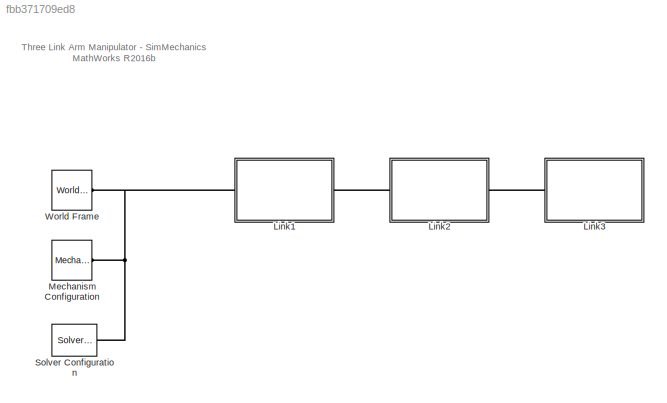
MODEL slx_fbb371709ed8
KIND model
CONFIG AbsTol = auto
CONFIG EnableMultiTasking = on
CONFIG FixedStep = auto
CONFIG MaxStep = 0.1
CONFIG MinStep = auto
CONFIG PreLoadFcn = b1 = 0.015;\nm1 = 1;\nrho1 = 1;\nth1_0 = 75;\nb2 = 0.015;\nm2 = 1.2;\nrho2 = 1.2;\nth2_0 = 60;\nb3 = 0.015;\nm3 = 0.5;\nrho3 = 0.5;\nth3_0 = 90;
CONFIG RelTol = 1e-3
CONFIG SampleTimeConstraint = Unconstrained
CONFIG Solver = ode23t
CONFIG SolverName = ode23t
CONFIG StartTime = 0.0
CONFIG StopTime = 20
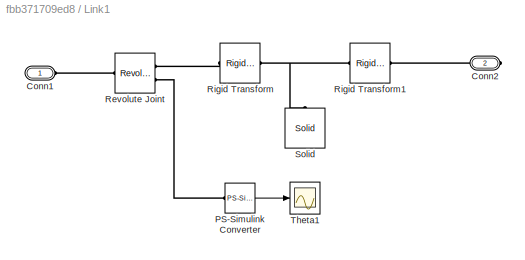
BLOCK [SubSystem] Link1
  Ports = [0, 0, 0, 0, 0, 1, 1]
  RequestExecContextInheritance = off
  Variant = off
BLOCK [PMIOPort] Link1/Conn1
  Port = 1
  Side = Left
BLOCK [PMIOPort] Link1/Conn2
  Port = 2
  Side = Right
BLOCK [Reference] Link1/PS-Simulink Converter  REF=nesl_utility/PS-Simulink
Converter
  Ports = [0, 1, 0, 0, 0, 1]
  SourceBlock = nesl_utility/PS-Simulink\nConverter
  SourceType = PS-Simulink\nConverter
BLOCK [Reference] Link1/Revolute Joint  REF=sm_lib/Joints/Revolute Joint
  Ports = [0, 0, 0, 0, 0, 1, 2]
  SourceBlock = sm_lib/Joints/Revolute Joint
  SourceType = Revolute Joint
BLOCK [Reference] Link1/Rigid Transform  REF=sm_lib/Frames and
Transforms/Rigid
Transform
  Ports = [0, 0, 0, 0, 0, 1, 1]
  SourceBlock = sm_lib/Frames and\nTransforms/Rigid\nTransform
  SourceType = Rigid\nTransform
BLOCK [Reference] Link1/Rigid Transform1  REF=sm_lib/Frames and
Transforms/Rigid
Transform
  Ports = [0, 0, 0, 0, 0, 1, 1]
  SourceBlock = sm_lib/Frames and\nTransforms/Rigid\nTransform
  SourceType = Rigid\nTransform
BLOCK [Reference] Link1/Solid  REF=sm_lib/Body Elements/Solid
  Ports = [0, 0, 0, 0, 0, 0, 1]
  SourceBlock = sm_lib/Body Elements/Solid
  SourceType = Solid
BLOCK [Scope] Link1/Theta1
  NumInputPorts = 1
  Ports = [1]
  ScopeSpecificationString = C++SS(StrPVP('Location','[180, 509, 518, 773]'),StrPVP('Open','off'),MxPVP('AxesTitles',24,'struct(''axes1'',''%<SignalLabel>'')'),MxPVP('ScopeGraphics',28,'struct(''FigureColor'',''[0.313725490196078 0.313725490196078 0.313725490196078]'',''AxesColor'',''[1 1 1]'',''AxesTickColor'',''[0.8 0.8 0.8]'',''LineColors'',''[0.870588235294118 0.490196078431373 0;0 0.447058823529412 0.741176470588235;0.46...<+418ch>
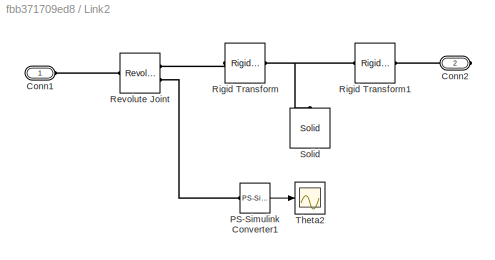
BLOCK [SubSystem] Link2
  Ports = [0, 0, 0, 0, 0, 1, 1]
  RequestExecContextInheritance = off
  Variant = off
BLOCK [PMIOPort] Link2/Conn1
  Port = 1
  Side = Left
BLOCK [PMIOPort] Link2/Conn2
  Port = 2
  Side = Right
BLOCK [Reference] Link2/PS-Simulink Converter1  REF=nesl_utility/PS-Simulink
Converter
  Ports = [0, 1, 0, 0, 0, 1]
  SourceBlock = nesl_utility/PS-Simulink\nConverter
  SourceType = PS-Simulink\nConverter
BLOCK [Reference] Link2/Revolute Joint  REF=sm_lib/Joints/Revolute Joint
  Ports = [0, 0, 0, 0, 0, 1, 2]
  SourceBlock = sm_lib/Joints/Revolute Joint
  SourceType = Revolute Joint
BLOCK [Reference] Link2/Rigid Transform  REF=sm_lib/Frames and
Transforms/Rigid
Transform
  Ports = [0, 0, 0, 0, 0, 1, 1]
  SourceBlock = sm_lib/Frames and\nTransforms/Rigid\nTransform
  SourceType = Rigid\nTransform
BLOCK [Reference] Link2/Rigid Transform1  REF=sm_lib/Frames and
Transforms/Rigid
Transform
  Ports = [0, 0, 0, 0, 0, 1, 1]
  SourceBlock = sm_lib/Frames and\nTransforms/Rigid\nTransform
  SourceType = Rigid\nTransform
BLOCK [Reference] Link2/Solid  REF=sm_lib/Body Elements/Solid
  Ports = [0, 0, 0, 0, 0, 0, 1]
  SourceBlock = sm_lib/Body Elements/Solid
  SourceType = Solid
BLOCK [Scope] Link2/Theta2
  NumInputPorts = 1
  Ports = [1]
  ScopeSpecificationString = C++SS(StrPVP('Location','[536, 509, 860, 770]'),StrPVP('Open','off'),MxPVP('AxesTitles',24,'struct(''axes1'',''%<SignalLabel>'')'),MxPVP('ScopeGraphics',28,'struct(''FigureColor'',''[0.313725490196078 0.313725490196078 0.313725490196078]'',''AxesColor'',''[1 1 1]'',''AxesTickColor'',''[0.8 0.8 0.8]'',''LineColors'',''[0.870588235294118 0.490196078431373 0;0 0.447058823529412 0.741176470588235;0.46...<+450ch>
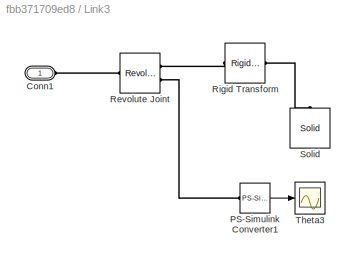
BLOCK [SubSystem] Link3
  Ports = [0, 0, 0, 0, 0, 1]
  RequestExecContextInheritance = off
  Variant = off
BLOCK [PMIOPort] Link3/Conn1
  Port = 1
  Side = Left
BLOCK [Reference] Link3/PS-Simulink Converter1  REF=nesl_utility/PS-Simulink
Converter
  Ports = [0, 1, 0, 0, 0, 1]
  SourceBlock = nesl_utility/PS-Simulink\nConverter
  SourceType = PS-Simulink\nConverter
BLOCK [Reference] Link3/Revolute Joint  REF=sm_lib/Joints/Revolute Joint
  Ports = [0, 0, 0, 0, 0, 1, 2]
  SourceBlock = sm_lib/Joints/Revolute Joint
  SourceType = Revolute Joint
BLOCK [Reference] Link3/Rigid Transform  REF=sm_lib/Frames and
Transforms/Rigid
Transform
  Ports = [0, 0, 0, 0, 0, 1, 1]
  SourceBlock = sm_lib/Frames and\nTransforms/Rigid\nTransform
  SourceType = Rigid\nTransform
BLOCK [Reference] Link3/Solid  REF=sm_lib/Body Elements/Solid
  Ports = [0, 0, 0, 0, 0, 0, 1]
  SourceBlock = sm_lib/Body Elements/Solid
  SourceType = Solid
BLOCK [Scope] Link3/Theta3
  NumInputPorts = 1
  Ports = [1]
  ScopeSpecificationString = C++SS(StrPVP('Location','[536, 509, 860, 770]'),StrPVP('Open','off'),MxPVP('AxesTitles',24,'struct(''axes1'',''%<SignalLabel>'')'),MxPVP('ScopeGraphics',28,'struct(''FigureColor'',''[0.313725490196078 0.313725490196078 0.313725490196078]'',''AxesColor'',''[1 1 1]'',''AxesTickColor'',''[0.8 0.8 0.8]'',''LineColors'',''[0.870588235294118 0.490196078431373 0;0 0.447058823529412 0.741176470588235;0.46...<+450ch>
BLOCK [Reference] Mechanism Configuration  REF=sm_lib/Utilities/Mechanism
Configuration
  Ports = [0, 0, 0, 0, 0, 0, 1]
  SourceBlock = sm_lib/Utilities/Mechanism\nConfiguration
  SourceType = Mechanism\nConfiguration
BLOCK [Reference] Solver Configuration  REF=nesl_utility/Solver
Configuration
  Ports = [0, 0, 0, 0, 0, 0, 1]
  SourceBlock = nesl_utility/Solver\nConfiguration
  SourceType = Solver\nConfiguration
BLOCK [Reference] World Frame  REF=sm_lib/Frames and
Transforms/World Frame
  Ports = [0, 0, 0, 0, 0, 0, 1]
  SourceBlock = sm_lib/Frames and\nTransforms/World Frame
  SourceType = World Frame
ANNOTATION (root): Three Link Arm Manipulator - SimMechanics MathWorks R2016b
LINE Link1/PS-Simulink Converter:1 -> Link1/Theta1:1
LINE Link2/PS-Simulink Converter1:1 -> Link2/Theta2:1
LINE Link3/PS-Simulink Converter1:1 -> Link3/Theta3:1
PLINE Link1/Conn1:RConn1 -- Link1/Revolute Joint:LConn1
PLINE Link1/Conn2:RConn1 -- Link1/Rigid Transform1:RConn1
PLINE Link1/PS-Simulink Converter:LConn1 -- Link1/Revolute Joint:RConn2
PLINE Link1/Revolute Joint:RConn1 -- Link1/Rigid Transform:LConn1
PNET net1: Link1/Rigid Transform1:LConn1 -- Link1/Rigid Transform:RConn1 -- Link1/Solid:RConn1
PNET net2: Link1:LConn1 -- Mechanism Configuration:RConn1 -- Solver Configuration:RConn1 -- World Frame:RConn1
PLINE Link1:RConn1 -- Link2:LConn1
PLINE Link2/Conn1:RConn1 -- Link2/Revolute Joint:LConn1
PLINE Link2/Conn2:RConn1 -- Link2/Rigid Transform1:RConn1
PLINE Link2/PS-Simulink Converter1:LConn1 -- Link2/Revolute Joint:RConn2
PLINE Link2/Revolute Joint:RConn1 -- Link2/Rigid Transform:LConn1
PNET net3: Link2/Rigid Transform1:LConn1 -- Link2/Rigid Transform:RConn1 -- Link2/Solid:RConn1
PLINE Link2:RConn1 -- Link3:LConn1
PLINE Link3/Conn1:RConn1 -- Link3/Revolute Joint:LConn1
PLINE Link3/PS-Simulink Converter1:LConn1 -- Link3/Revolute Joint:RConn2
PLINE Link3/Revolute Joint:RConn1 -- Link3/Rigid Transform:LConn1
PLINE Link3/Rigid Transform:RConn1 -- Link3/Solid:RConn1
note: PNET lines group multi-terminal physical nets as a canonical sorted terminal list (undirected conserving connections); 2-terminal nets keep the pairwise PLINE form
